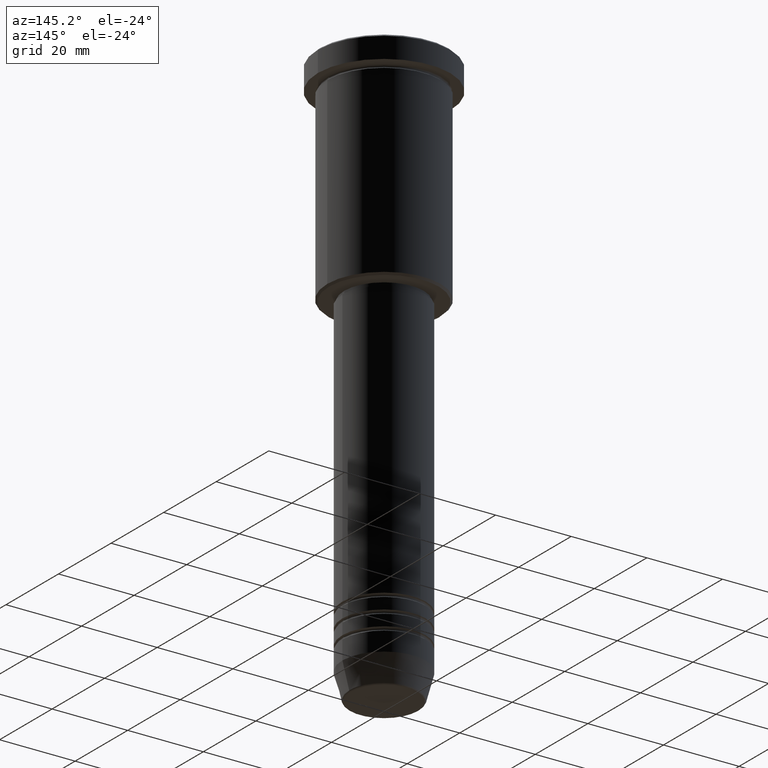
[diagram: clean part render]
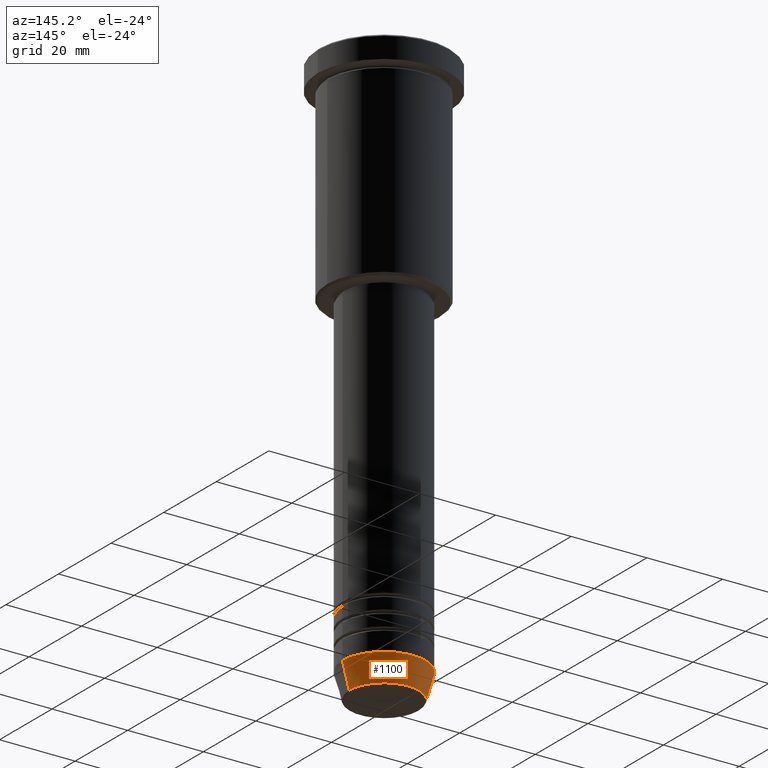
[diagram: same view with one face highlighted and labeled with its STEP entity id]
A machine part, auxiliary view. The second image highlights one B-rep face of the part: STEP entity #1100.
In plain terms, the highlighted conical surface has half-angle 15 deg.
Its self-contained STEP definition (entity closure, byte-faithful):
#18 = CONICAL_SURFACE ( 'NONE', #684, 11.00000000000000000, 0.2617993877991500740 ) ;
#26 = CARTESIAN_POINT ( 'NONE',  ( -9.223655072137189492, 1.238341722557647202E-15, -150.6294095225512706 ) ) ;
#28 = CARTESIAN_POINT ( 'NONE',  ( -11.00000000000000000, 1.347111479062088405E-15, -144.0000000000000284 ) ) ;
#170 = CARTESIAN_POINT ( 'NONE',  ( 0.000000000000000000, 0.000000000000000000, -150.6294095225512706 ) ) ;
#182 = AXIS2_PLACEMENT_3D ( 'NONE', #840, #406, #491 ) ;
#229 = ORIENTED_EDGE ( 'NONE', *, *, #937, .T. ) ;
#268 = CARTESIAN_POINT ( 'NONE',  ( -11.00000000000000000, 1.347111479062088405E-15, -144.0000000000000284 ) ) ;
#283 = EDGE_CURVE ( 'NONE', #449, #877, #316, .T. ) ;
#316 = LINE ( 'NONE', #28, #681 ) ;
#371 = CARTESIAN_POINT ( 'NONE',  ( 0.000000000000000000, 0.000000000000000000, -144.0000000000000284 ) ) ;
#406 = DIRECTION ( 'NONE',  ( -0.000000000000000000, -0.000000000000000000, 1.000000000000000000 ) ) ;
#410 = DIRECTION ( 'NONE',  ( -0.2588190451025213501, 3.169619151431772337E-17, 0.9659258262890680902 ) ) ;
#449 = VERTEX_POINT ( 'NONE', #26 ) ;
#486 = EDGE_CURVE ( 'NONE', #1037, #877, #549, .T. ) ;
#491 = DIRECTION ( 'NONE',  ( 1.000000000000000000, 0.000000000000000000, 0.000000000000000000 ) ) ;
#549 = CIRCLE ( 'NONE', #182, 11.00000000000000000 ) ;
#552 = DIRECTION ( 'NONE',  ( -0.000000000000000000, -0.000000000000000000, 1.000000000000000000 ) ) ;
#595 = CARTESIAN_POINT ( 'NONE',  ( 11.00000000000000000, 0.000000000000000000, -144.0000000000000284 ) ) ;
#655 = CARTESIAN_POINT ( 'NONE',  ( 9.223655072137189492, 0.000000000000000000, -150.6294095225512706 ) ) ;
#681 = VECTOR ( 'NONE', #410, 1000.000000000000000 ) ;
#684 = AXIS2_PLACEMENT_3D ( 'NONE', #371, #552, #1152 ) ;
#688 = ORIENTED_EDGE ( 'NONE', *, *, #283, .T. ) ;
#714 = DIRECTION ( 'NONE',  ( -0.000000000000000000, -0.000000000000000000, 1.000000000000000000 ) ) ;
#754 = EDGE_CURVE ( 'NONE', #857, #1037, #1134, .T. ) ;
#811 = AXIS2_PLACEMENT_3D ( 'NONE', #170, #714, #1077 ) ;
#840 = CARTESIAN_POINT ( 'NONE',  ( 0.000000000000000000, 0.000000000000000000, -144.0000000000000284 ) ) ;
#857 = VERTEX_POINT ( 'NONE', #655 ) ;
#877 = VERTEX_POINT ( 'NONE', #268 ) ;
#937 = EDGE_CURVE ( 'NONE', #857, #449, #978, .T. ) ;
#946 = EDGE_LOOP ( 'NONE', ( #229, #688, #1090, #950 ) ) ;
#950 = ORIENTED_EDGE ( 'NONE', *, *, #754, .F. ) ;
#965 = DIRECTION ( 'NONE',  ( 0.2588190451025213501, 0.000000000000000000, 0.9659258262890680902 ) ) ;
#978 = CIRCLE ( 'NONE', #811, 9.223655072137189492 ) ;
#1037 = VERTEX_POINT ( 'NONE', #1038 ) ;
#1038 = CARTESIAN_POINT ( 'NONE',  ( 11.00000000000000000, 0.000000000000000000, -144.0000000000000284 ) ) ;
#1077 = DIRECTION ( 'NONE',  ( 1.000000000000000000, 0.000000000000000000, 0.000000000000000000 ) ) ;
#1090 = ORIENTED_EDGE ( 'NONE', *, *, #486, .F. ) ;
#1100 = ADVANCED_FACE ( 'NONE', ( #1158 ), #18, .T. ) ;
#1108 = VECTOR ( 'NONE', #965, 1000.000000000000000 ) ;
#1134 = LINE ( 'NONE', #595, #1108 ) ;
#1152 = DIRECTION ( 'NONE',  ( 1.000000000000000000, 0.000000000000000000, 0.000000000000000000 ) ) ;
#1158 = FACE_OUTER_BOUND ( 'NONE', #946, .T. ) ;